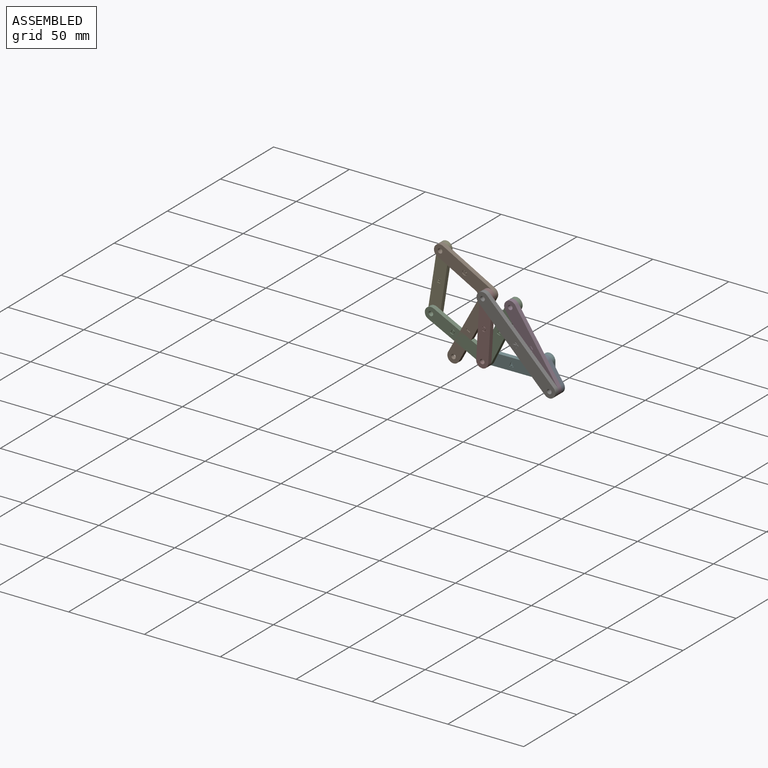
[diagram: assembled view]
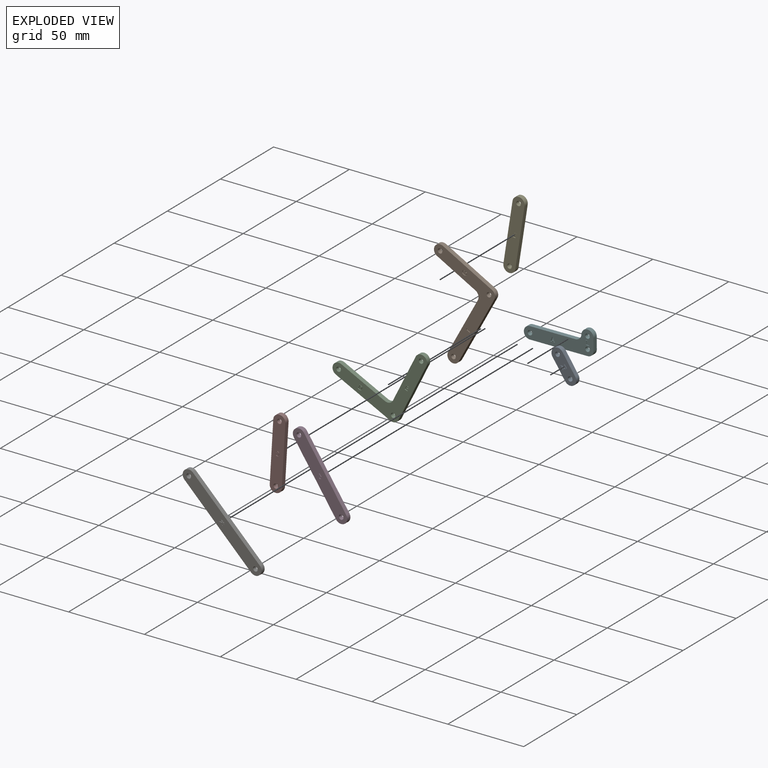
[diagram: exploded view]
GUIDED TOUR — MATED ASSEMBLY (Onshape document dfbe2fdf98cc18a066b5e3b9, AutoMate assembly dfbe2fdf98cc18a066b5e3b9_20a989393fc4f41b038203e8_1c06d0c6803b55779a3ea163_default)

This assembly has 8 components, labeled P0..P7 below (a component is one placed occurrence of a part; the same part can appear more than once), held together by 11 mates. A mate is a constraint between two components; its type names the relative motion it leaves free:
  CYLINDRICAL — leaves both rotation about and translation along the listed axis free,
  REVOLUTE — leaves rotation about the listed axis free (a hinge).
Axis/direction vectors are unit vectors and 'through' points are millimeter coordinates, both in the assembly's world frame.

MATES
  1. REVOLUTE "Revolute 1": P4 <-> P1, axis (0.000, -1.000, 0.000) through (-67.90, -21.72, 48.62) mm
  2. REVOLUTE "Revolute 2": P1 <-> P7, axis (0.000, -1.000, 0.000) through (-35.66, -24.72, 31.08) mm
  3. REVOLUTE "Revolute 4": P2 <-> P7, axis (0.000, -1.000, 0.000) through (-38.01, -24.72, -8.15) mm
  4. REVOLUTE "Revolute 5": P3 <-> P2, axis (0.000, -1.000, 0.000) through (-19.56, -24.72, 29.02) mm
  5. CYLINDRICAL "Cylindrical 1": P5 <-> P0, axis (0.000, -1.000, 0.000) through (-0.07, -21.72, -0.05) mm
  6. REVOLUTE "Revolute 7": P6 <-> P7, axis (0.000, -1.000, 0.000) through (-35.66, -27.72, 31.08) mm
  7. REVOLUTE "Revolute 6": P0 <-> P3, axis (0.000, -1.000, 0.000) through (8.29, -24.72, -12.50) mm
  8. REVOLUTE "Revolute 8": P6 <-> P3, axis (0.000, -1.000, 0.000) through (8.29, -27.72, -12.50) mm
  9. REVOLUTE "Revolute 3": P4 <-> P2, axis (0.000, -1.000, 0.000) through (-73.93, -21.72, 9.68) mm
  10. REVOLUTE "Revolute 9": P5 <-> P2, axis (0.000, -1.000, 0.000) through (-38.01, -21.72, -8.15) mm
  11. CYLINDRICAL "Cylindrical 2": P3 <-> P0, axis (0.000, -1.000, 0.000) through (8.29, -27.72, -12.50) mm

ASSEMBLY ORDER
  1. P1 — the base component [order verified]
  2. P2 [order verified]
  3. P3 [order verified]
  4. P0 [order verified]
  5. P7 [order verified]
  6. P5 [order verified]
  7. P4 [order verified]
  8. P6 [order verified]
Order-tag legend:
  [order verified] — this step's position reverses a verified removal order: the component was checked to insert without passing through the ones already placed.

Of the 8 components, 5 carry the full construction recipe — the FeatureScript program that regenerates the part's solid from scratch; the rest are supplied as boundary geometry only.
Each toured component is shown spotlighted twice — in the assembled view, then in the exploded view, where a leader line traces a displaced component back to its assembled socket (saturated green if recipe-attached, orange if geometry-only; every other component desaturated gray) — followed by its recipe or geometry summary and the mates that hold it.
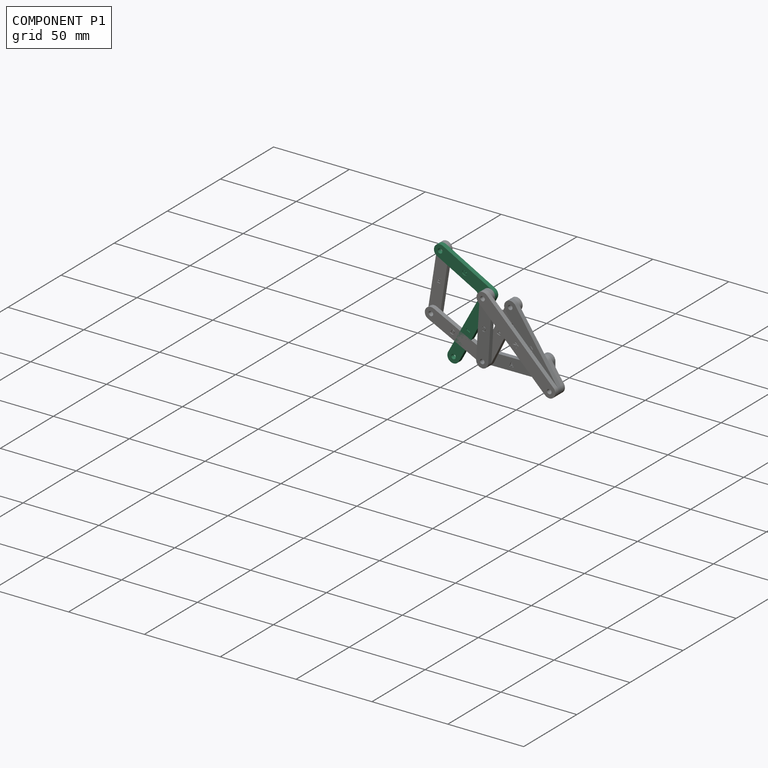
[diagram: component P1 — assembled]
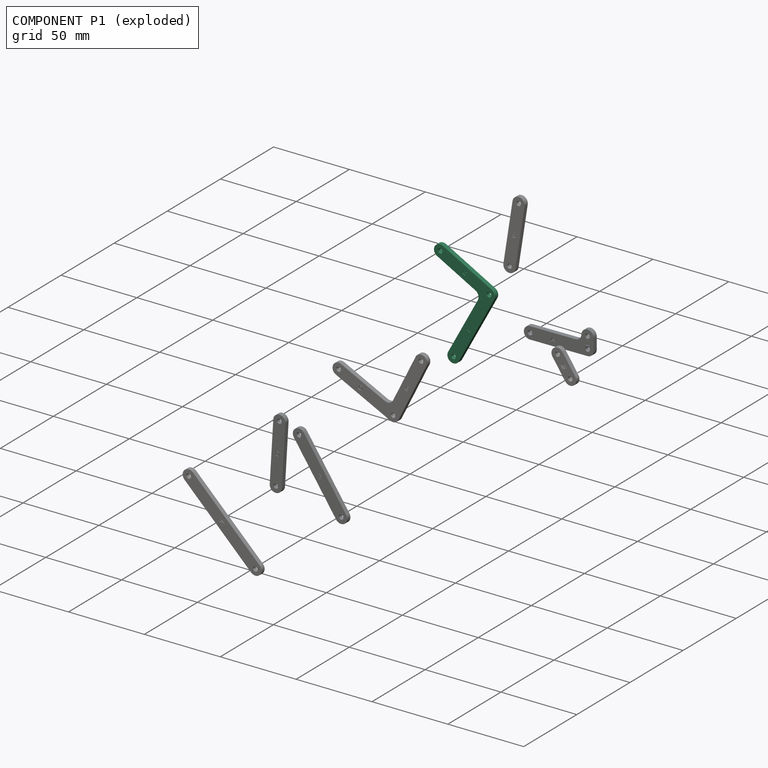
[diagram: component P1 — exploded]
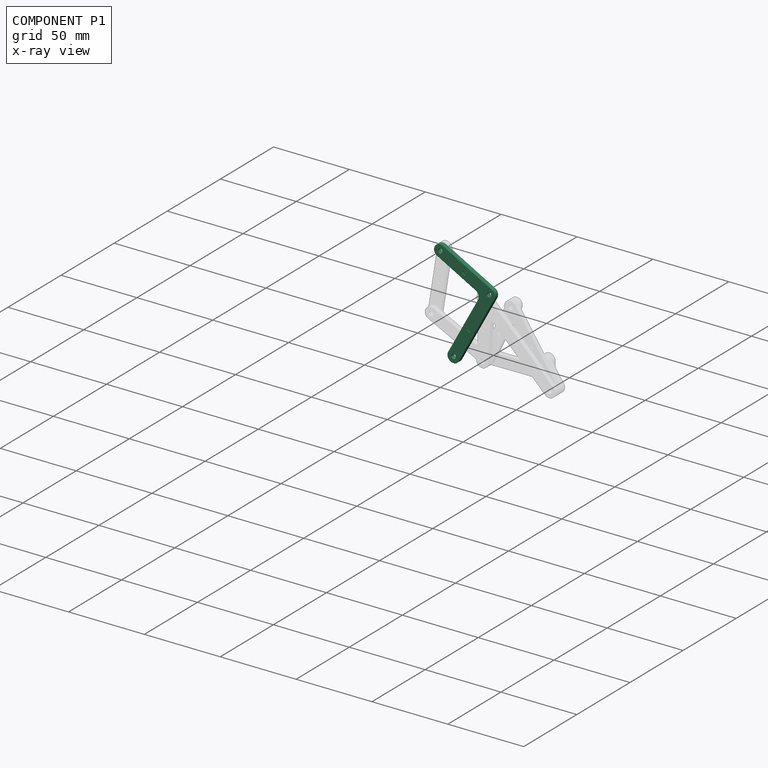
[diagram: component P1 — x-ray view]
COMPONENT P1 — recipe-attached (CADFS 00172013, mesh-verified: the recipe's output STEP matches this component's geometry to below the mesh-comparison resolution (tessellation chordal tolerance ~0.109 mm)).
Held by: REVOLUTE mate "Revolute 1" to P4; REVOLUTE mate "Revolute 2" to P7.
Construction recipe (FeatureScript — the CAD program that rebuilds this solid; sketch coordinates are in the units given by the * unit suffixes, e.g. mm):

FeatureScript 2345;
import(path : "onshape/std/geometry.fs", version : "2345.0");
import(path : "onshape/std/common.fs", version : "2345.0");
const mm = millimeter;
const VERTEX = EntityType.VERTEX;
const EDGE = EntityType.EDGE;
const FACE = EntityType.FACE;
const BODY = EntityType.BODY;
function v(x, y){return vector(x, y);}
function OD(order){return orderDisambiguation(order);}
function OSD(set){return originalSetDisambiguation(set);}
function TD(topology){return topologyDisambiguation(topology);}
function TDD(query){return trueDependencyDisambiguation(query);}
function sQuery(a, b, c) {return sketchEntityQuery(a, b, c);}

annotation { "Feature Type Name" : "Feature", "Feature Type Description" : "" }
export const myFeature = defineFeature(function(context is Context, id is Id, definition is map)
    precondition{}
    {
        {
            assignVariable(context, id + "F0", {"name" : "Thickness", "anyValue" : 3});
        }
        {
            var Q0;
            Q0=qCreatedBy(makeId("Front.planeOp"),FACE);
            var sketch = newSketch(context, id + "F1", { "sketchPlane" : qUnion([Q0])});
            skCircle(sketch, "E0", {"center": v(-49, 0) * mm, "radius": 1.5 * mm});
            skCircle(sketch, "E1", {"center": v(0, 36.7) * mm, "radius": 1.5 * mm});
            skCircle(sketch, "E2", {"center": v(0, 0) * mm, "radius": 1.5 * mm});
            skArc(sketch, "E3", {"start": v(-49, 4) * mm, "mid": v(-53, 0) * mm, "end": v(-49, -4) * mm});
            skArc(sketch, "E4", {"start": v(4, 36.7) * mm, "mid": v(0, 40.7) * mm, "end": v(-4, 36.7) * mm});
            skArc(sketch, "E5", {"start": v(0, -4) * mm, "mid": v(2.83, -2.83) * mm, "end": v(4, 0) * mm});
            skArc(sketch, "E6", {"start": v(-8, 4) * mm, "mid": v(-5.17, 5.17) * mm, "end": v(-4, 8) * mm});
            skLineSegment(sketch, "E7", {"start": v(-49, 4) * mm, "end": v(-8, 4) * mm});
            skLineSegment(sketch, "E8", {"start": v(-4, 8) * mm, "end": v(-4, 36.7) * mm});
            skLineSegment(sketch, "E9", {"start": v(4, 36.7) * mm, "end": v(4, 0) * mm});
            skLineSegment(sketch, "E10", {"start": v(0, -4) * mm, "end": v(-49, -4) * mm});
            skSolve(sketch);
        }
        {
            var Q0;
            Q0=makeQuery(id+"F1.imprint","IMPRINT",FACE,{"disambiguationData":[TD([[makeQuery(id+"F1.imprint","IMPRINT",EDGE,{"derivedFrom":sQuery(id+"F1.wireOp",EDGE,"E0")}),-1.0]])]});
            extrude(context, id + "F2", {"entities" : qUnion([Q0]), "oppositeDirection" : true, "depth" : (getVariable(context, 'Thickness')) * mm});
        }
        {
            var Q0;
            Q0=qCreatedBy(makeId("Front.planeOp"),FACE);
            var sketch = newSketch(context, id + "F3", { "sketchPlane" : qUnion([Q0])});
            skText(sketch, "E11", { "text": "G", "fontName": "RobotoSlab-Regular.ttf"});
            skText(sketch, "E12", { "text": "I", "fontName": "RobotoSlab-Regular.ttf"});
            skLineSegment(sketch, "E13", {"start": v(-29.23, 0) * mm, "end": v(-27.77, 0) * mm, "construction": true});
            skLineSegment(sketch, "E14", {"start": v(1.38, 18.35) * mm, "end": v(4, 18.35) * mm, "construction": true});
            skLineSegment(sketch, "E15", {"start": v(-28.5, 1.5) * mm, "end": v(-28.5, 4) * mm, "construction": true});
            const initialGuessF3  = {"E11": [-0.00138, 0.01685, 1, 0, 0.003], "E12": [-0.02923, -0.0015, 1, 0, 0.003]};
            skSetInitialGuess(sketch, initialGuessF3);
            skSolve(sketch);
        }
        {
            assignVariable(context, id + "F4", {"name" : "DepthText", "anyValue" : .5});
        }
        {
            var Q0;
            Q0=qSketchRegion(id+"F3",true);
            extrude(context, id + "F5", {"entities" : qUnion([Q0]), "operationType" : NewBodyOperationType.REMOVE, "oppositeDirection" : true, "depth" : (getVariable(context, 'DepthText')) * mm});
        }
    });
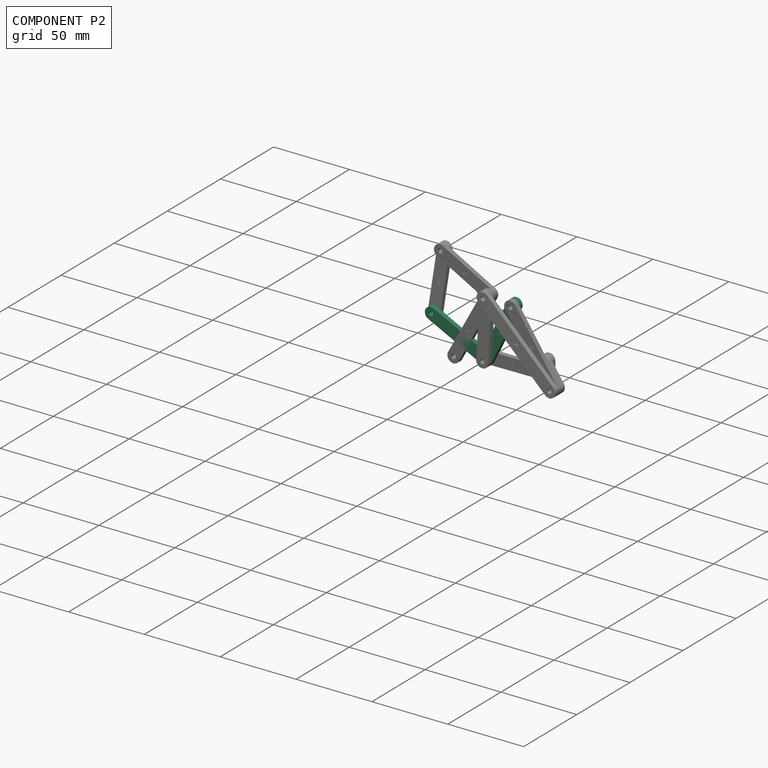
[diagram: component P2 — assembled]
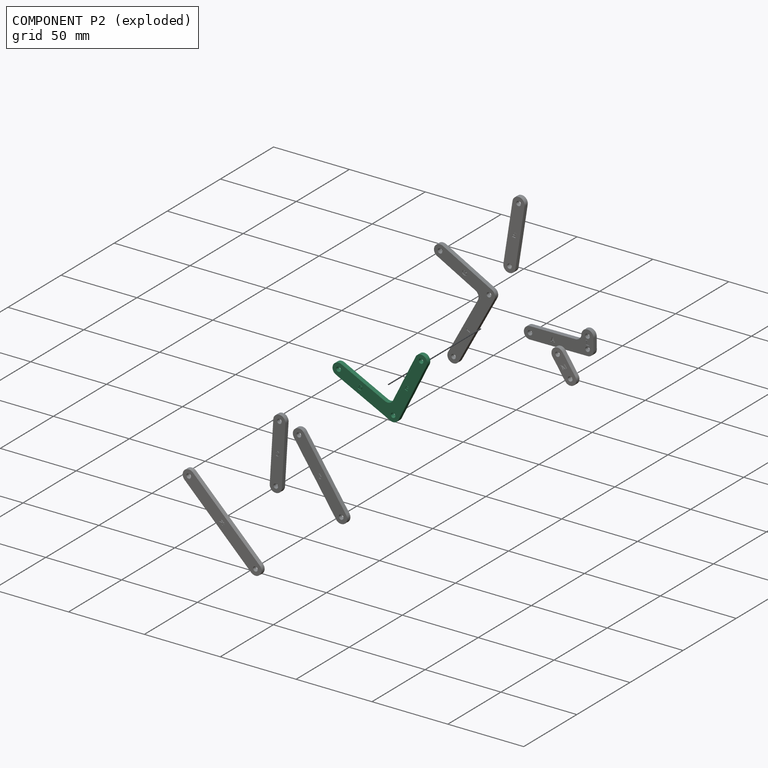
[diagram: component P2 — exploded]
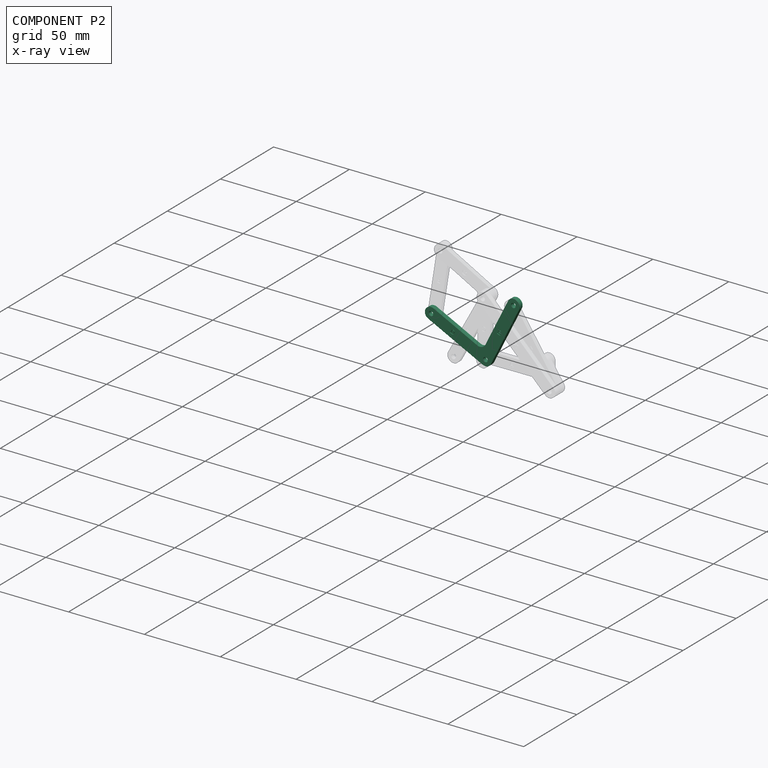
[diagram: component P2 — x-ray view]
COMPONENT P2 — recipe-attached (CADFS 00172014, mesh-verified: the recipe's output STEP matches this component's geometry to below the mesh-comparison resolution (tessellation chordal tolerance ~0.104 mm)).
Held by: REVOLUTE mate "Revolute 4" to P7; REVOLUTE mate "Revolute 5" to P3; REVOLUTE mate "Revolute 3" to P4; REVOLUTE mate "Revolute 9" to P5.
Construction recipe (FeatureScript — the CAD program that rebuilds this solid; sketch coordinates are in the units given by the * unit suffixes, e.g. mm):

FeatureScript 2345;
import(path : "onshape/std/geometry.fs", version : "2345.0");
import(path : "onshape/std/common.fs", version : "2345.0");
const mm = millimeter;
const VERTEX = EntityType.VERTEX;
const EDGE = EntityType.EDGE;
const FACE = EntityType.FACE;
const BODY = EntityType.BODY;
function v(x, y){return vector(x, y);}
function OD(order){return orderDisambiguation(order);}
function OSD(set){return originalSetDisambiguation(set);}
function TD(topology){return topologyDisambiguation(topology);}
function TDD(query){return trueDependencyDisambiguation(query);}
function sQuery(a, b, c) {return sketchEntityQuery(a, b, c);}

annotation { "Feature Type Name" : "Feature", "Feature Type Description" : "" }
export const myFeature = defineFeature(function(context is Context, id is Id, definition is map)
    precondition{}
    {
        {
            assignVariable(context, id + "F0", {"name" : "Thickness", "anyValue" : 3});
        }
        {
            var Q0;
            Q0=qCreatedBy(makeId("Front.planeOp"),FACE);
            var sketch = newSketch(context, id + "F1", { "sketchPlane" : qUnion([Q0])});
            skCircle(sketch, "E0", {"center": v(-40.1, 0) * mm, "radius": 1.5 * mm});
            skCircle(sketch, "E1", {"center": v(0, 41.5) * mm, "radius": 1.5 * mm});
            skCircle(sketch, "E2", {"center": v(0, 0) * mm, "radius": 1.5 * mm});
            skArc(sketch, "E3", {"start": v(-40.1, 4) * mm, "mid": v(-44.1, 0) * mm, "end": v(-40.1, -4) * mm});
            skArc(sketch, "E4", {"start": v(4, 41.5) * mm, "mid": v(0, 45.5) * mm, "end": v(-4, 41.5) * mm});
            skArc(sketch, "E5", {"start": v(0, -4) * mm, "mid": v(2.83, -2.83) * mm, "end": v(4, 0) * mm});
            skArc(sketch, "E6", {"start": v(-8, 4) * mm, "mid": v(-5.17, 5.17) * mm, "end": v(-4, 8) * mm});
            skLineSegment(sketch, "E7", {"start": v(-40.1, 4) * mm, "end": v(-8, 4) * mm});
            skLineSegment(sketch, "E8", {"start": v(-4, 8) * mm, "end": v(-4, 41.5) * mm});
            skLineSegment(sketch, "E9", {"start": v(4, 41.5) * mm, "end": v(4, 0) * mm});
            skLineSegment(sketch, "E10", {"start": v(0, -4) * mm, "end": v(-40.1, -4) * mm});
            skSolve(sketch);
        }
        {
            var Q0;
            Q0=makeQuery(id+"F1.imprint","IMPRINT",FACE,{"disambiguationData":[TD([[makeQuery(id+"F1.imprint","IMPRINT",EDGE,{"derivedFrom":sQuery(id+"F1.wireOp",EDGE,"E0")}),-1.0]])]});
            extrude(context, id + "F2", {"entities" : qUnion([Q0]), "oppositeDirection" : true, "depth" : (getVariable(context, 'Thickness')) * mm});
        }
        {
            var Q0;
            Q0=qCreatedBy(makeId("Front.planeOp"),FACE);
            var sketch = newSketch(context, id + "F3", { "sketchPlane" : qUnion([Q0])});
            skText(sketch, "E11", { "text": "B", "fontName": "RobotoSlab-Regular.ttf"});
            skText(sketch, "E12", { "text": "D", "fontName": "RobotoSlab-Regular.ttf"});
            skLineSegment(sketch, "E13", {"start": v(-25.51, 0) * mm, "end": v(-22.59, 0) * mm, "construction": true});
            skLineSegment(sketch, "E14", {"start": v(1.4, 20.75) * mm, "end": v(4, 20.75) * mm, "construction": true});
            skLineSegment(sketch, "E15", {"start": v(-24.05, 4) * mm, "end": v(-24.05, 1.5) * mm, "construction": true});
            const initialGuessF3  = {"E11": [-0.0014, 0.01925, 1, 0, 0.003], "E12": [-0.02551, -0.0015, 1, 0, 0.003]};
            skSetInitialGuess(sketch, initialGuessF3);
            skSolve(sketch);
        }
        {
            assignVariable(context, id + "F4", {"name" : "DepthText", "anyValue" : .5});
        }
        {
            var Q0;
            Q0 = qSketchRegion(id + "F3", true);
            extrude(context, id + "F5", {"entities" : qUnion([Q0]), "operationType" : NewBodyOperationType.REMOVE, "oppositeDirection" : true, "depth" : (getVariable(context, 'DepthText')) * mm});
        }
    });
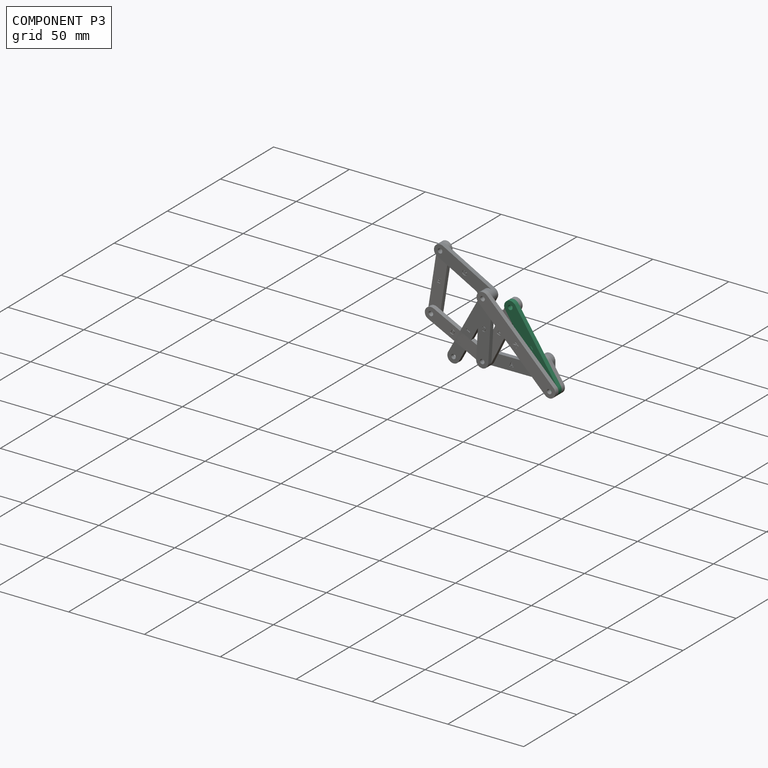
[diagram: component P3 — assembled]
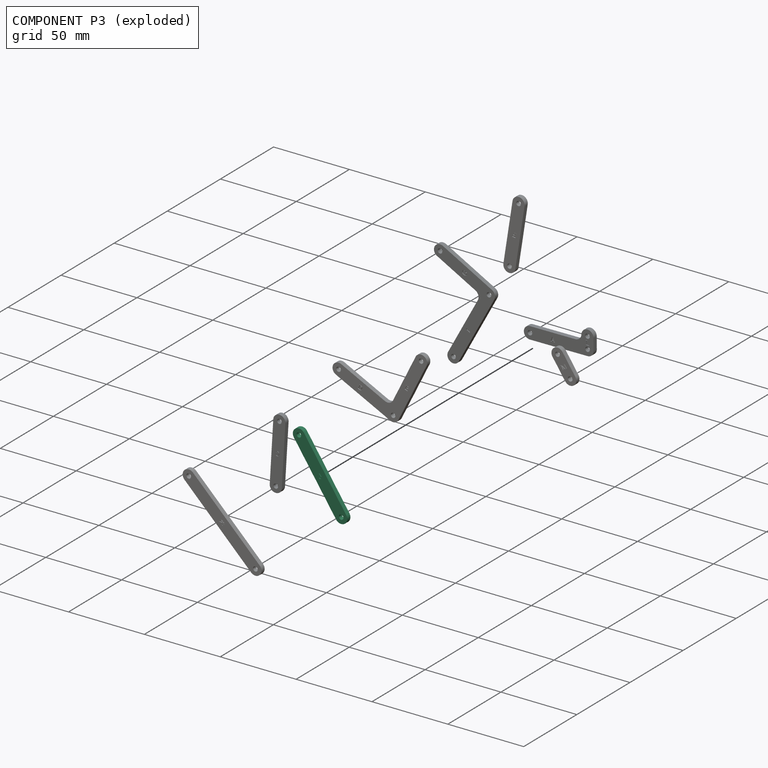
[diagram: component P3 — exploded]
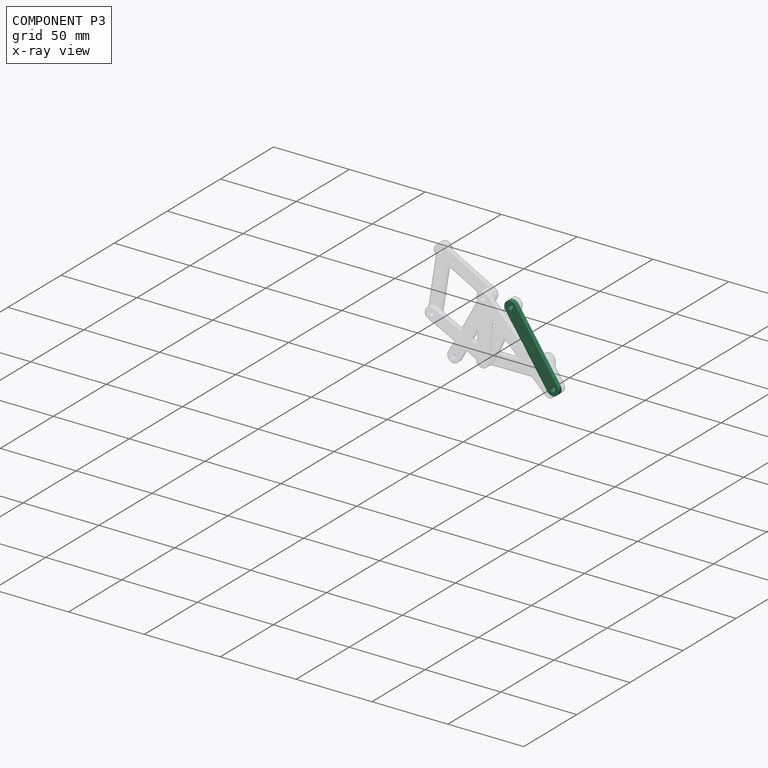
[diagram: component P3 — x-ray view]
COMPONENT P3 — recipe-attached (CADFS 00172010, mesh-verified: the recipe's output STEP matches this component's geometry to below the mesh-comparison resolution (tessellation chordal tolerance ~0.0879 mm)).
Held by: REVOLUTE mate "Revolute 5" to P2; REVOLUTE mate "Revolute 6" to P0; REVOLUTE mate "Revolute 8" to P6; CYLINDRICAL mate "Cylindrical 2" to P0.
Construction recipe (FeatureScript — the CAD program that rebuilds this solid; sketch coordinates are in the units given by the * unit suffixes, e.g. mm):

FeatureScript 2345;
import(path : "onshape/std/geometry.fs", version : "2345.0");
import(path : "onshape/std/common.fs", version : "2345.0");
const mm = millimeter;
const VERTEX = EntityType.VERTEX;
const EDGE = EntityType.EDGE;
const FACE = EntityType.FACE;
const BODY = EntityType.BODY;
function v(x, y){return vector(x, y);}
function OD(order){return orderDisambiguation(order);}
function OSD(set){return originalSetDisambiguation(set);}
function TD(topology){return topologyDisambiguation(topology);}
function TDD(query){return trueDependencyDisambiguation(query);}
function sQuery(a, b, c) {return sketchEntityQuery(a, b, c);}

annotation { "Feature Type Name" : "Feature", "Feature Type Description" : "" }
export const myFeature = defineFeature(function(context is Context, id is Id, definition is map)
    precondition{}
    {
        {
            assignVariable(context, id + "F0", {"name" : "Thickness", "anyValue" : 3});
        }
        {
            var Q0;
            Q0=qCreatedBy(makeId("Front.planeOp"),FACE);
            var sketch = newSketch(context, id + "F1", { "sketchPlane" : qUnion([Q0])});
            skCircle(sketch, "E0", {"center": v(0, 50) * mm, "radius": 1.5 * mm});
            skCircle(sketch, "E1", {"center": v(0, 0) * mm, "radius": 1.5 * mm});
            skArc(sketch, "E2", {"start": v(4, 50) * mm, "mid": v(0, 54) * mm, "end": v(-4, 50) * mm});
            skArc(sketch, "E3", {"start": v(-4, 0) * mm, "mid": v(0, -4) * mm, "end": v(4, 0) * mm});
            skLineSegment(sketch, "E4", {"start": v(-4, 0) * mm, "end": v(-4, 50) * mm});
            skLineSegment(sketch, "E5", {"start": v(4, 50) * mm, "end": v(4, 0) * mm});
            skSolve(sketch);
        }
        {
            var Q0;
            Q0=makeQuery(id+"F1.imprint","IMPRINT",FACE,{"disambiguationData":[TD([[makeQuery(id+"F1.imprint","IMPRINT",EDGE,{"derivedFrom":sQuery(id+"F1.wireOp",EDGE,"E0")}),-1.0]])]});
            extrude(context, id + "F2", {"entities" : qUnion([Q0]), "oppositeDirection" : true, "depth" : (getVariable(context, 'Thickness')) * mm});
        }
        {
            var Q0;
            Q0=qCreatedBy(makeId("Front.planeOp"),FACE);
            var sketch = newSketch(context, id + "F3", { "sketchPlane" : qUnion([Q0])});
            skText(sketch, "E6", { "text": "J", "fontName": "RobotoSlab-Regular.ttf"});
            skLineSegment(sketch, "E7", {"start": v(1.27, 25) * mm, "end": v(4, 25) * mm, "construction": true});
            const initialGuessF3  = {"E6": [-0.00127, 0.0235, 1, 0, 0.003]};
            skSetInitialGuess(sketch, initialGuessF3);
            skSolve(sketch);
        }
        {
            assignVariable(context, id + "F4", {"name" : "DepthText", "anyValue" : .5});
        }
        {
            var Q0;
            Q0 = qSketchRegion(id + "F3", true);
            extrude(context, id + "F5", {"entities" : qUnion([Q0]), "operationType" : NewBodyOperationType.REMOVE, "oppositeDirection" : true, "depth" : (getVariable(context, 'DepthText')) * mm});
        }
    });
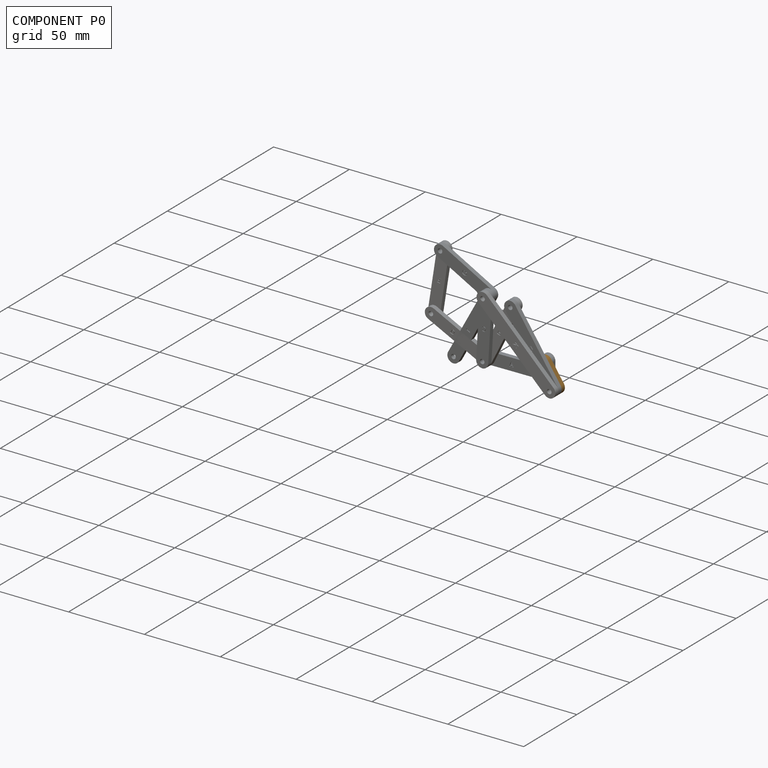
[diagram: component P0 — assembled]
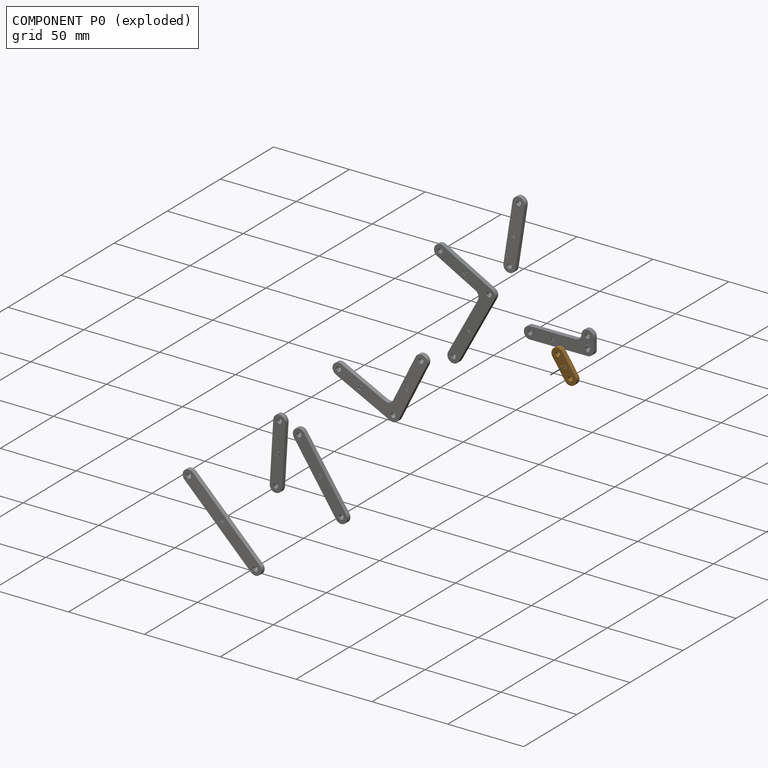
[diagram: component P0 — exploded]
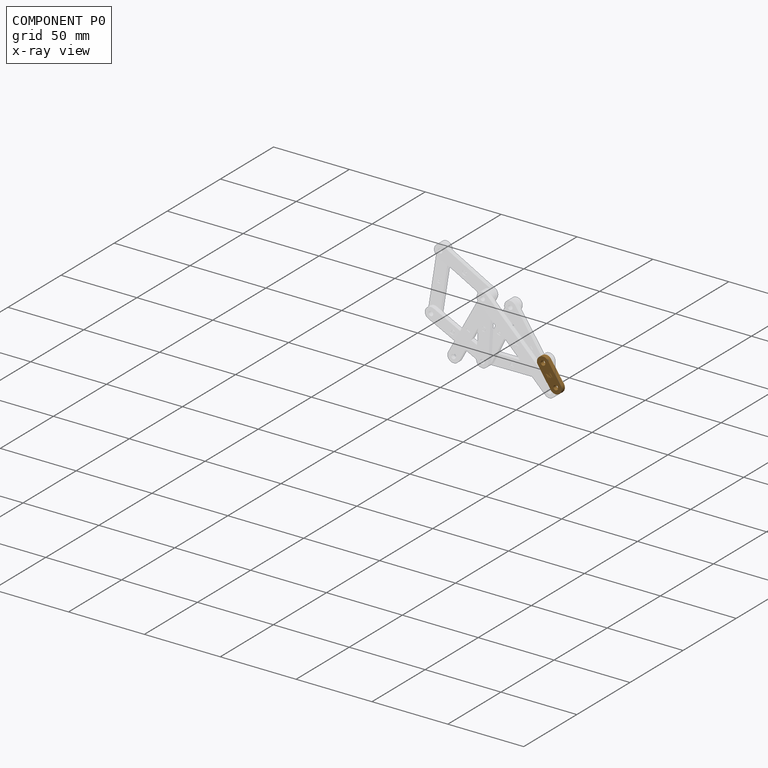
[diagram: component P0 — x-ray view]
COMPONENT P0 — geometry summary (no construction recipe available for this part):
  bounding box: 23.0 x 8.0 x 3.0 mm
  B-rep topology: 1 solid, 39 faces, 216 edges
  volume: 466 mm^3 (84% of its bounding box)
  symmetry: mirror-symmetric across its x mid-plane
Held by: CYLINDRICAL mate "Cylindrical 1" to P5; REVOLUTE mate "Revolute 6" to P3; CYLINDRICAL mate "Cylindrical 2" to P3.
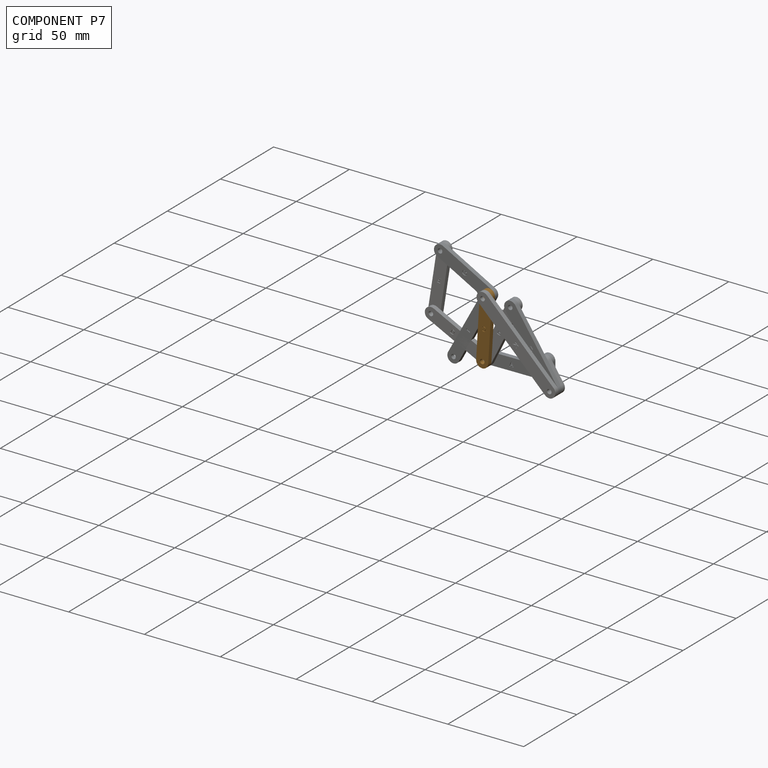
[diagram: component P7 — assembled]
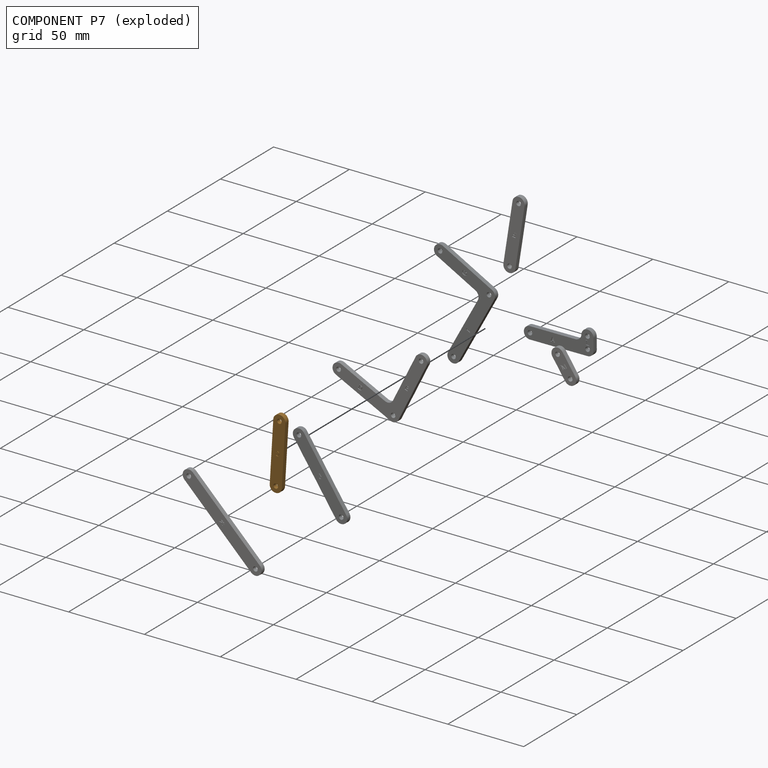
[diagram: component P7 — exploded]
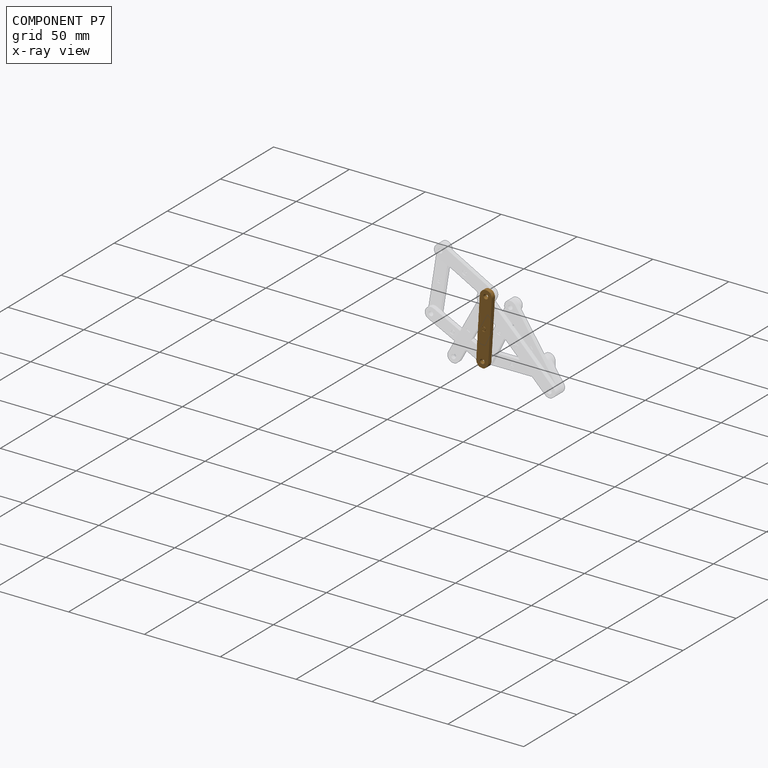
[diagram: component P7 — x-ray view]
COMPONENT P7 — geometry summary (no construction recipe available for this part):
  bounding box: 47.3 x 8.0 x 3.0 mm
  B-rep topology: 1 solid, 33 faces, 180 edges
  volume: 1050 mm^3 (93% of its bounding box)
  symmetry: 2-fold rotationally symmetric about the y axis; mirror-symmetric across its x mid-plane, z mid-plane
Held by: REVOLUTE mate "Revolute 2" to P1; REVOLUTE mate "Revolute 4" to P2; REVOLUTE mate "Revolute 7" to P6.
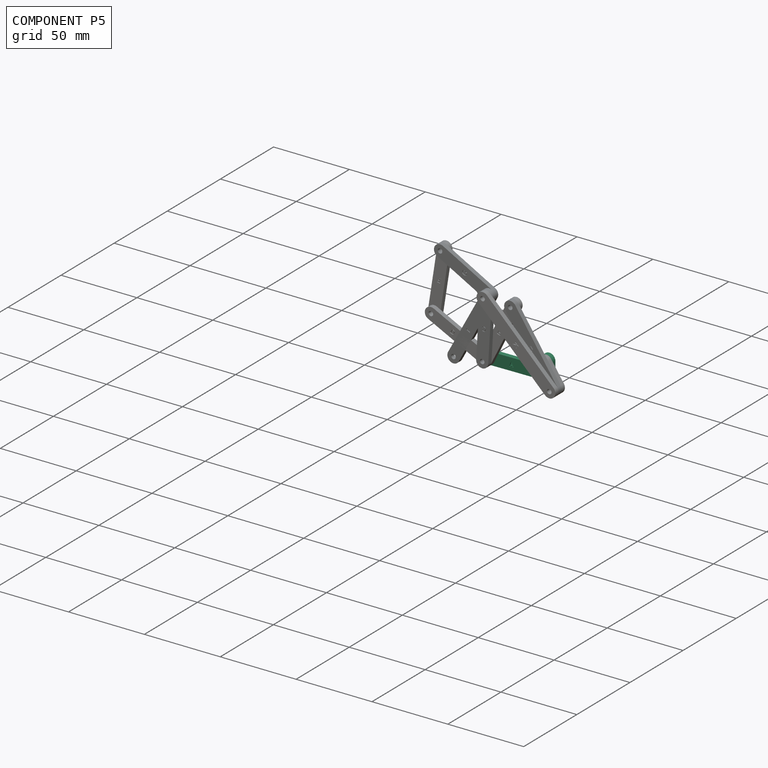
[diagram: component P5 — assembled]
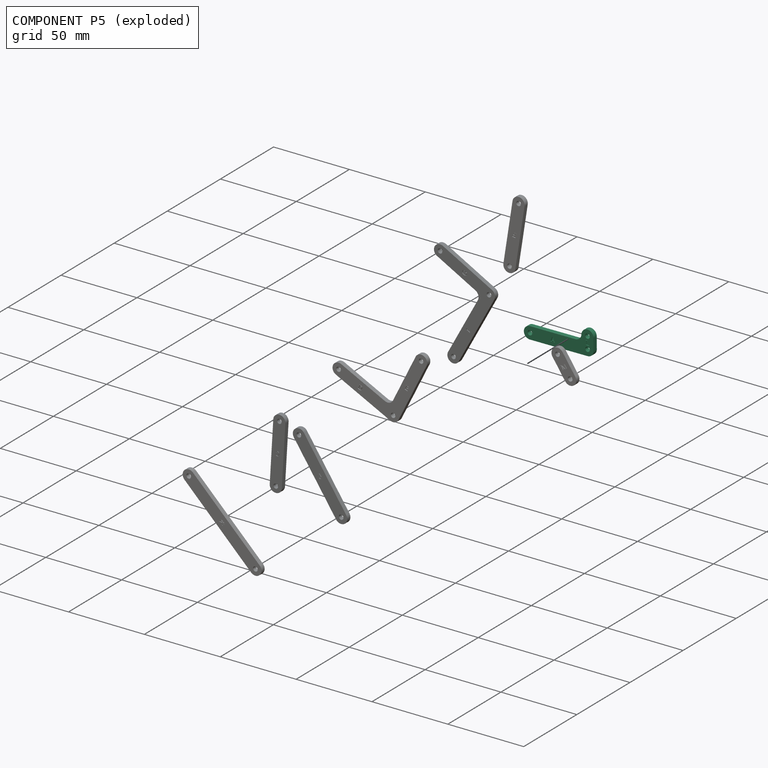
[diagram: component P5 — exploded]
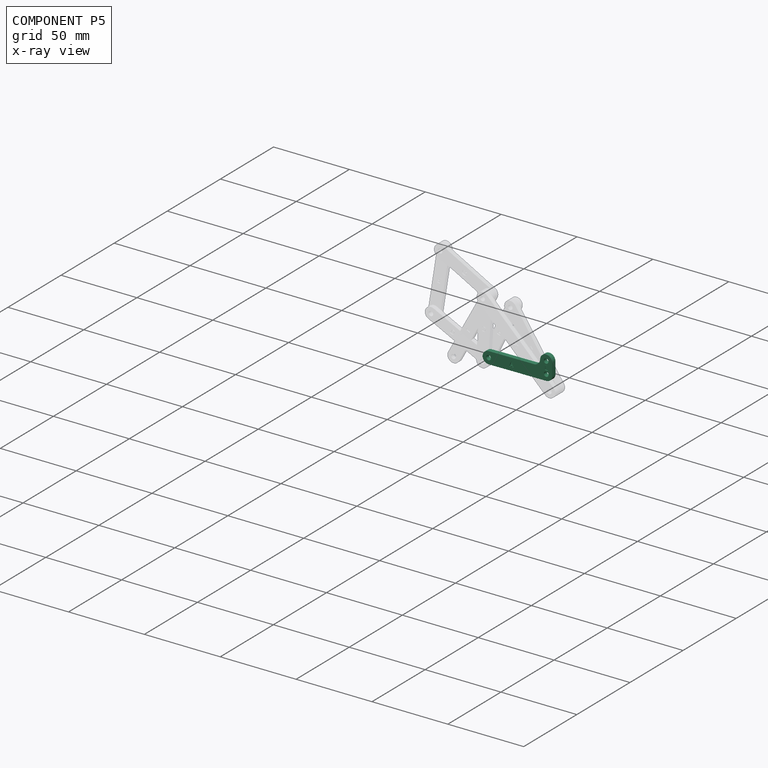
[diagram: component P5 — x-ray view]
COMPONENT P5 — recipe-attached (CADFS 00172012, mesh-verified: the recipe's output STEP matches this component's geometry to below the mesh-comparison resolution (tessellation chordal tolerance ~0.0731 mm)).
Held by: CYLINDRICAL mate "Cylindrical 1" to P0; REVOLUTE mate "Revolute 9" to P2.
Construction recipe (FeatureScript — the CAD program that rebuilds this solid; sketch coordinates are in the units given by the * unit suffixes, e.g. mm):

FeatureScript 2345;
import(path : "onshape/std/geometry.fs", version : "2345.0");
import(path : "onshape/std/common.fs", version : "2345.0");
const mm = millimeter;
const VERTEX = EntityType.VERTEX;
const EDGE = EntityType.EDGE;
const FACE = EntityType.FACE;
const BODY = EntityType.BODY;
function v(x, y){return vector(x, y);}
function OD(order){return orderDisambiguation(order);}
function OSD(set){return originalSetDisambiguation(set);}
function TD(topology){return topologyDisambiguation(topology);}
function TDD(query){return trueDependencyDisambiguation(query);}
function sQuery(a, b, c) {return sketchEntityQuery(a, b, c);}

annotation { "Feature Type Name" : "Feature", "Feature Type Description" : "" }
export const myFeature = defineFeature(function(context is Context, id is Id, definition is map)
    precondition{}
    {
        {
            assignVariable(context, id + "F0", {"name" : "Thickness", "anyValue" : 3});
        }
        {
            var Q0;
            Q0=qCreatedBy(makeId("Front.planeOp"),FACE);
            var sketch = newSketch(context, id + "F1", { "sketchPlane" : qUnion([Q0])});
            skCircle(sketch, "E0", {"center": v(-38, 0) * mm, "radius": 1.5 * mm});
            skCircle(sketch, "E1", {"center": v(0, 7.8) * mm, "radius": 1.5 * mm});
            skCircle(sketch, "E2", {"center": v(0, 0) * mm, "radius": 1.5 * mm});
            skArc(sketch, "E3", {"start": v(-38, 4) * mm, "mid": v(-42, 0) * mm, "end": v(-38, -4) * mm});
            skArc(sketch, "E4", {"start": v(4, 7.8) * mm, "mid": v(0, 11.8) * mm, "end": v(-4, 7.8) * mm});
            skArc(sketch, "E5", {"start": v(0, -4) * mm, "mid": v(2.83, -2.83) * mm, "end": v(4, 0) * mm});
            skArc(sketch, "E6", {"start": v(-8, 4) * mm, "mid": v(-5.17, 5.17) * mm, "end": v(-4, 8) * mm});
            skLineSegment(sketch, "E7", {"start": v(-38, 4) * mm, "end": v(-8, 4) * mm});
            skLineSegment(sketch, "E8", {"start": v(-4, 7.8) * mm, "end": v(-4, 8) * mm});
            skLineSegment(sketch, "E9", {"start": v(4, 7.8) * mm, "end": v(4, 0) * mm});
            skLineSegment(sketch, "E10", {"start": v(0, -4) * mm, "end": v(-38, -4) * mm});
            skSolve(sketch);
        }
        {
            var Q0;
            Q0=makeQuery(id+"F1.imprint","IMPRINT",FACE,{"disambiguationData":[TD([[makeQuery(id+"F1.imprint","IMPRINT",EDGE,{"derivedFrom":sQuery(id+"F1.wireOp",EDGE,"E0")}),-1.0]])]});
            extrude(context, id + "F2", {"entities" : qUnion([Q0]), "oppositeDirection" : true, "depth" : (getVariable(context, 'Thickness')) * mm});
        }
        {
            var Q0;
            Q0=qCreatedBy(makeId("Front.planeOp"),FACE);
            var sketch = newSketch(context, id + "F3", { "sketchPlane" : qUnion([Q0])});
            skText(sketch, "E11", { "text": "L", "fontName": "RobotoSlab-Regular.ttf"});
            skText(sketch, "E12", { "text": "A", "fontName": "RobotoSlab-Regular.ttf"});
            skLineSegment(sketch, "E13", {"start": v(-24.6, 0) * mm, "end": v(-21.4, 0) * mm, "construction": true});
            skLineSegment(sketch, "E14", {"start": v(4, 3.9) * mm, "end": v(1.27, 3.9) * mm, "construction": true});
            skLineSegment(sketch, "E15", {"start": v(-23, 4) * mm, "end": v(-23, 1.5) * mm, "construction": true});
            const initialGuessF3  = {"E11": [-0.00127, 0.0024, 1, 0, 0.003], "E12": [-0.0246, -0.0015, 1, 0, 0.003]};
            skSetInitialGuess(sketch, initialGuessF3);
            skSolve(sketch);
        }
        {
            assignVariable(context, id + "F4", {"name" : "DepthText", "anyValue" : .5});
        }
        {
            var Q0;
            Q0=qSketchRegion(id+"F3",true);
            extrude(context, id + "F5", {"entities" : qUnion([Q0]), "operationType" : NewBodyOperationType.REMOVE, "oppositeDirection" : true, "depth" : (getVariable(context, 'DepthText')) * mm});
        }
    });
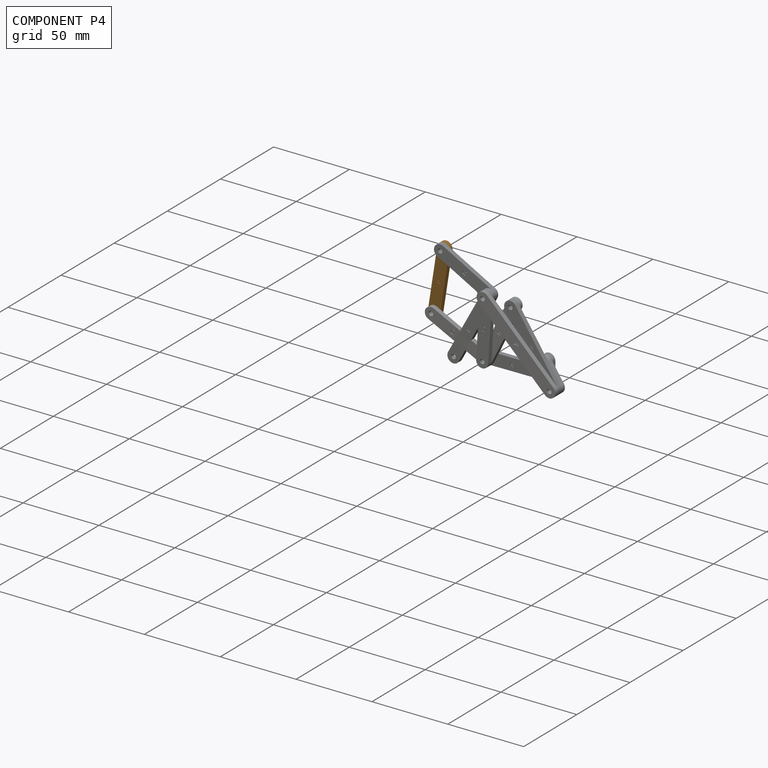
[diagram: component P4 — assembled]
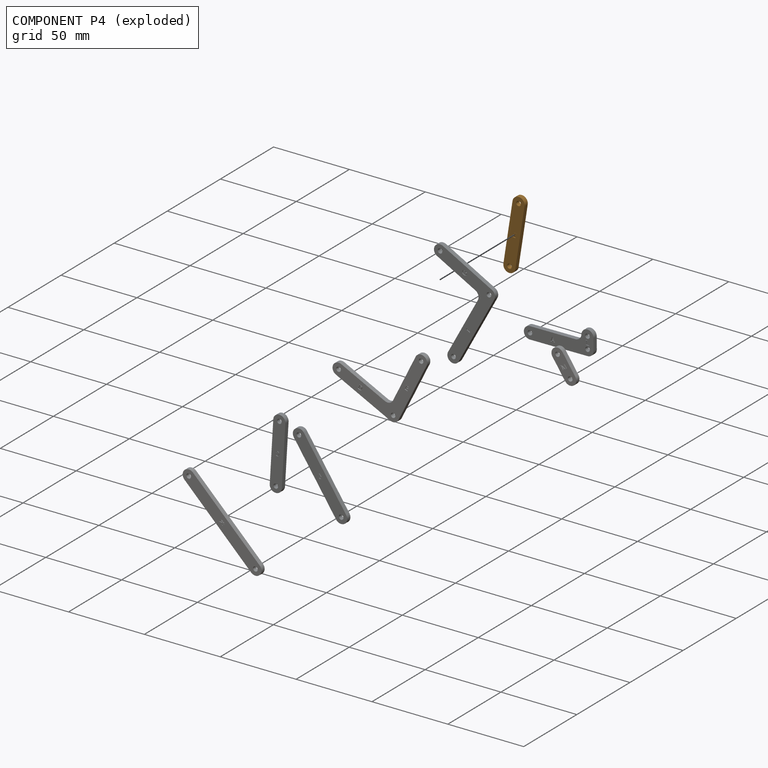
[diagram: component P4 — exploded]
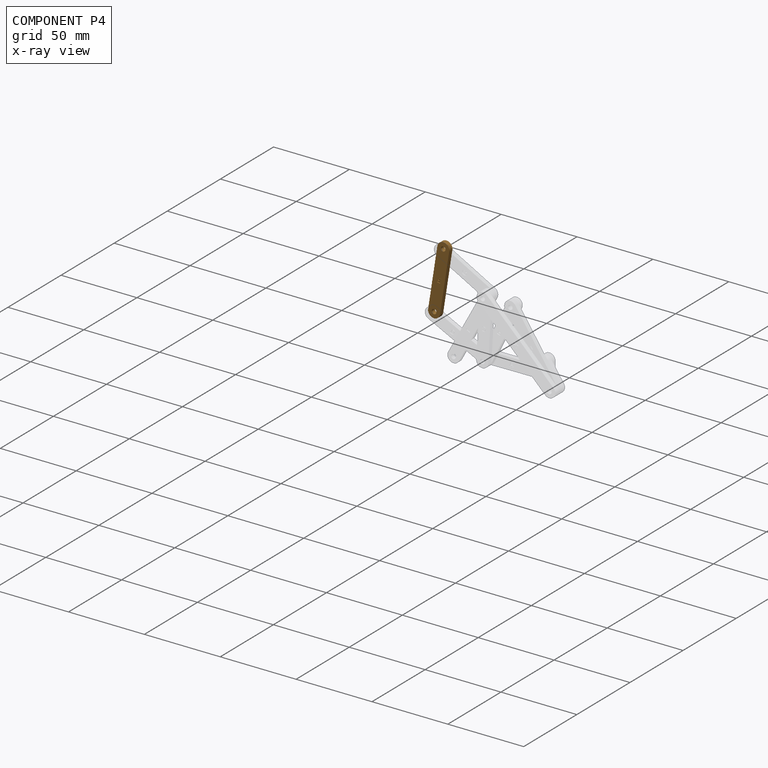
[diagram: component P4 — x-ray view]
COMPONENT P4 — geometry summary (no construction recipe available for this part):
  bounding box: 47.4 x 8.0 x 3.0 mm
  B-rep topology: 1 solid, 27 faces, 144 edges
  volume: 1053 mm^3 (93% of its bounding box)
  symmetry: mirror-symmetric across its z mid-plane
Held by: REVOLUTE mate "Revolute 1" to P1; REVOLUTE mate "Revolute 3" to P2.
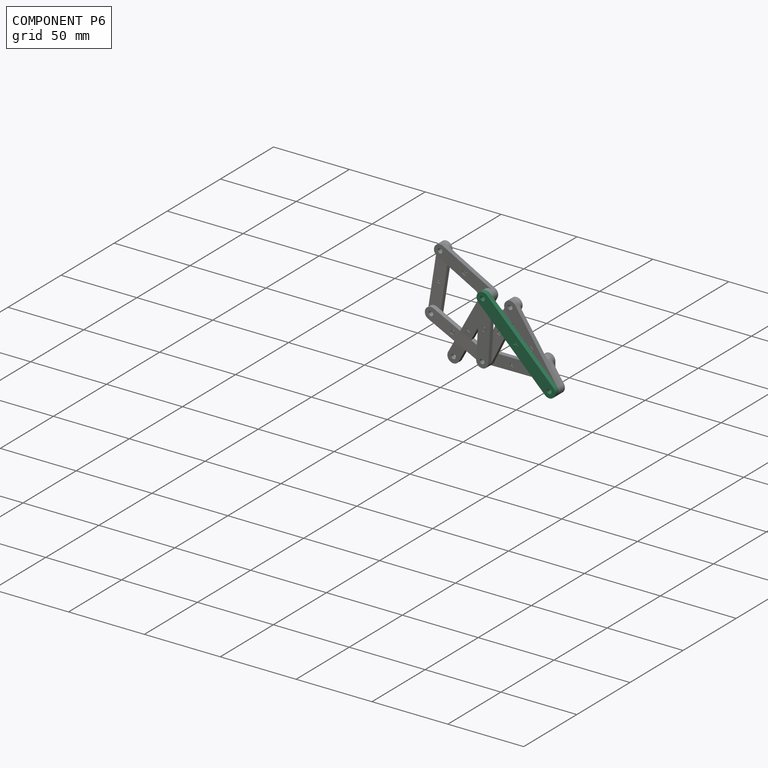
[diagram: component P6 — assembled]
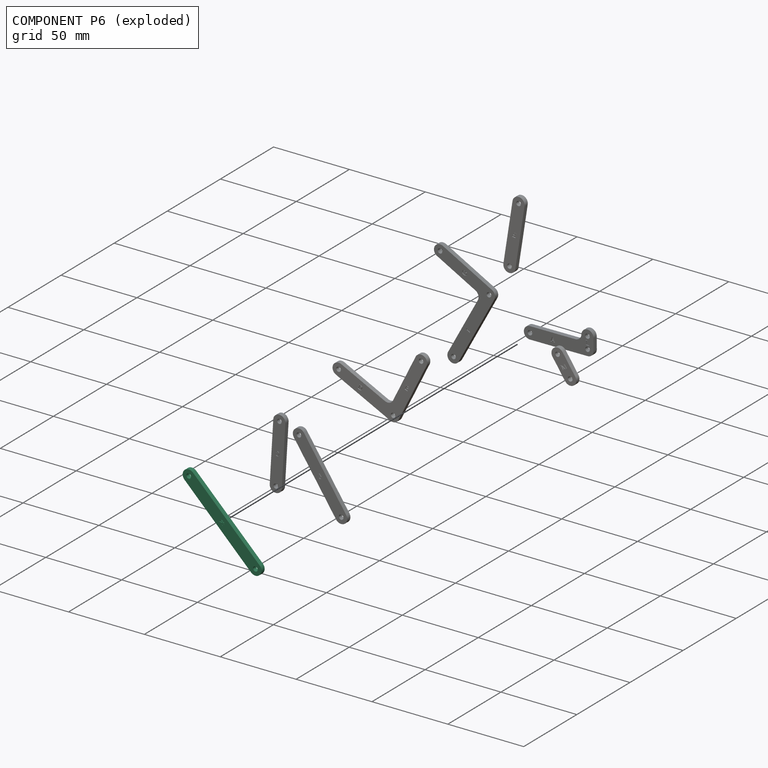
[diagram: component P6 — exploded]
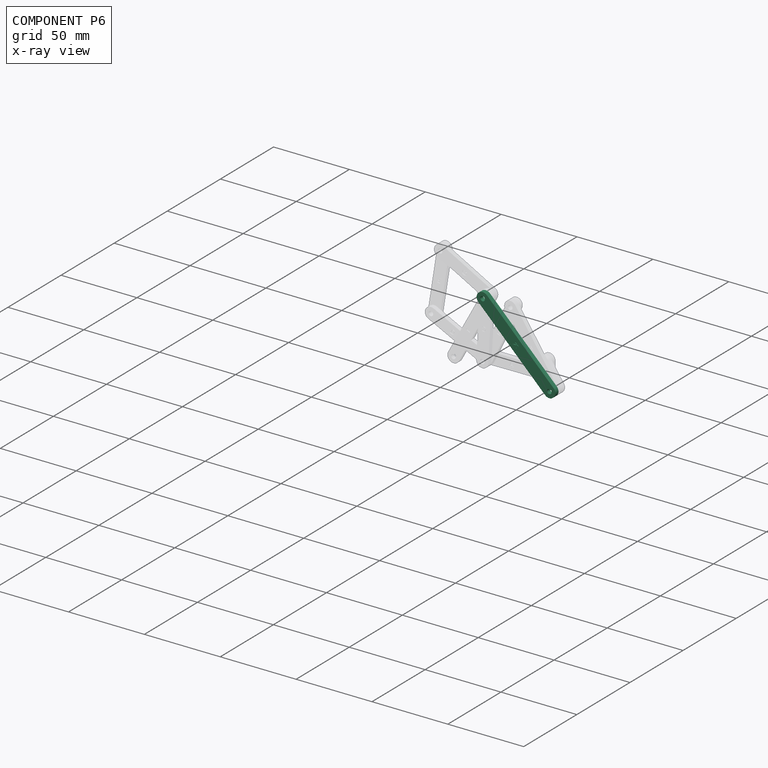
[diagram: component P6 — x-ray view]
COMPONENT P6 — recipe-attached (CADFS 00172011, mesh-verified: the recipe's output STEP matches this component's geometry to below the mesh-comparison resolution (tessellation chordal tolerance ~0.106 mm)).
Held by: REVOLUTE mate "Revolute 7" to P7; REVOLUTE mate "Revolute 8" to P3.
Construction recipe (FeatureScript — the CAD program that rebuilds this solid; sketch coordinates are in the units given by the * unit suffixes, e.g. mm):

FeatureScript 2345;
import(path : "onshape/std/geometry.fs", version : "2345.0");
import(path : "onshape/std/common.fs", version : "2345.0");
const mm = millimeter;
const VERTEX = EntityType.VERTEX;
const EDGE = EntityType.EDGE;
const FACE = EntityType.FACE;
const BODY = EntityType.BODY;
function v(x, y){return vector(x, y);}
function OD(order){return orderDisambiguation(order);}
function OSD(set){return originalSetDisambiguation(set);}
function TD(topology){return topologyDisambiguation(topology);}
function TDD(query){return trueDependencyDisambiguation(query);}
function sQuery(a, b, c) {return sketchEntityQuery(a, b, c);}

annotation { "Feature Type Name" : "Feature", "Feature Type Description" : "" }
export const myFeature = defineFeature(function(context is Context, id is Id, definition is map)
    precondition{}
    {
        {
            assignVariable(context, id + "F0", {"name" : "Thickness", "anyValue" : 3});
        }
        {
            var Q0;
            Q0=qCreatedBy(makeId("Front.planeOp"),FACE);
            var sketch = newSketch(context, id + "F1", { "sketchPlane" : qUnion([Q0])});
            skCircle(sketch, "E0", {"center": v(0, 61.9) * mm, "radius": 1.5 * mm});
            skCircle(sketch, "E1", {"center": v(0, 0) * mm, "radius": 1.5 * mm});
            skArc(sketch, "E2", {"start": v(4, 61.9) * mm, "mid": v(0, 65.9) * mm, "end": v(-4, 61.9) * mm});
            skArc(sketch, "E3", {"start": v(-4, 0) * mm, "mid": v(0, -4) * mm, "end": v(4, 0) * mm});
            skLineSegment(sketch, "E4", {"start": v(-4, 0) * mm, "end": v(-4, 61.9) * mm});
            skLineSegment(sketch, "E5", {"start": v(4, 61.9) * mm, "end": v(4, 0) * mm});
            skSolve(sketch);
        }
        {
            var Q0;
            Q0=makeQuery(id+"F1.imprint","IMPRINT",FACE,{"disambiguationData":[TD([[makeQuery(id+"F1.imprint","IMPRINT",EDGE,{"derivedFrom":sQuery(id+"F1.wireOp",EDGE,"0kyrNfPp-UYAh-n8tk-IVnA-H5sSIWuTYwV2")}),-1.0]])]});
            var Q1;
            Q1=makeQuery(id+"F1.imprint","IMPRINT",FACE,{"disambiguationData":[TD([[makeQuery(id+"F1.imprint","IMPRINT",EDGE,{"derivedFrom":sQuery(id+"F1.wireOp",EDGE,"E0")}),-1.0]])]});
            extrude(context, id + "F2", {"entities" : qUnion([Q0, Q1]), "oppositeDirection" : true, "depth" : (getVariable(context, 'Thickness')) * mm});
        }
        {
            var Q0;
            Q0=qCreatedBy(makeId("Front.planeOp"),FACE);
            var sketch = newSketch(context, id + "F3", { "sketchPlane" : qUnion([Q0])});
            skText(sketch, "E6", { "text": "K", "fontName": "RobotoSlab-Regular.ttf"});
            skLineSegment(sketch, "E7", {"start": v(1.54, 30.95) * mm, "end": v(4, 30.95) * mm, "construction": true});
            const initialGuessF3  = {"E6": [-0.00154, 0.02945, 1, 0, 0.003]};
            skSetInitialGuess(sketch, initialGuessF3);
            skSolve(sketch);
        }
        {
            assignVariable(context, id + "F4", {"name" : "DepthText", "anyValue" : .5});
        }
        {
            var Q0;
            Q0=qSketchRegion(id+"F3",true);
            extrude(context, id + "F5", {"entities" : qUnion([Q0]), "operationType" : NewBodyOperationType.REMOVE, "oppositeDirection" : true, "depth" : (getVariable(context, 'DepthText')) * mm});
        }
    });
PROVENANCE & LICENSES
Assembly (occurrences, transforms, mates, per-part STEP geometry): AutoMate dataset, Zenodo record 7776208, CC0.
Construction recipes: CADFS (HuggingFace VladPyatov/CADFS, CC-BY-4.0, layered over the ABC dataset), FeatureScript reconstruction programs keyed by ABC model id.
Join: ABC meta listings map ABC model id -> Onshape documentId; within a shared document, parts are matched by geometric signature (bounding-box dims + volume at 0.1% relative tolerance, exact B-rep face/solid counts).
Verification: 5 of this assembly's 8 components carry a recipe attachment, and every attachment is mesh-verified: the CADFS STEP and the AutoMate member STEP were compared as meshes in their shared local frame (symmetric sampled-point-to-mesh distance); worst across the 5 attachments: below the mesh-comparison resolution (tessellation chordal tolerance ~0.109 mm) on a 72 mm part.
Renders: orthographic iso camera (az 35 / el 25); the floor grid conveys scale (grid pitch printed in each image; no ruler). In the exploded view each component is displaced by its stored offset vector: the offsets alone carry the explosion direction (mate normal/axis signs are not orientation cues and do not encode it), and separation distances are assigned per mate-chain, not proportionally to assembly-order depth.
